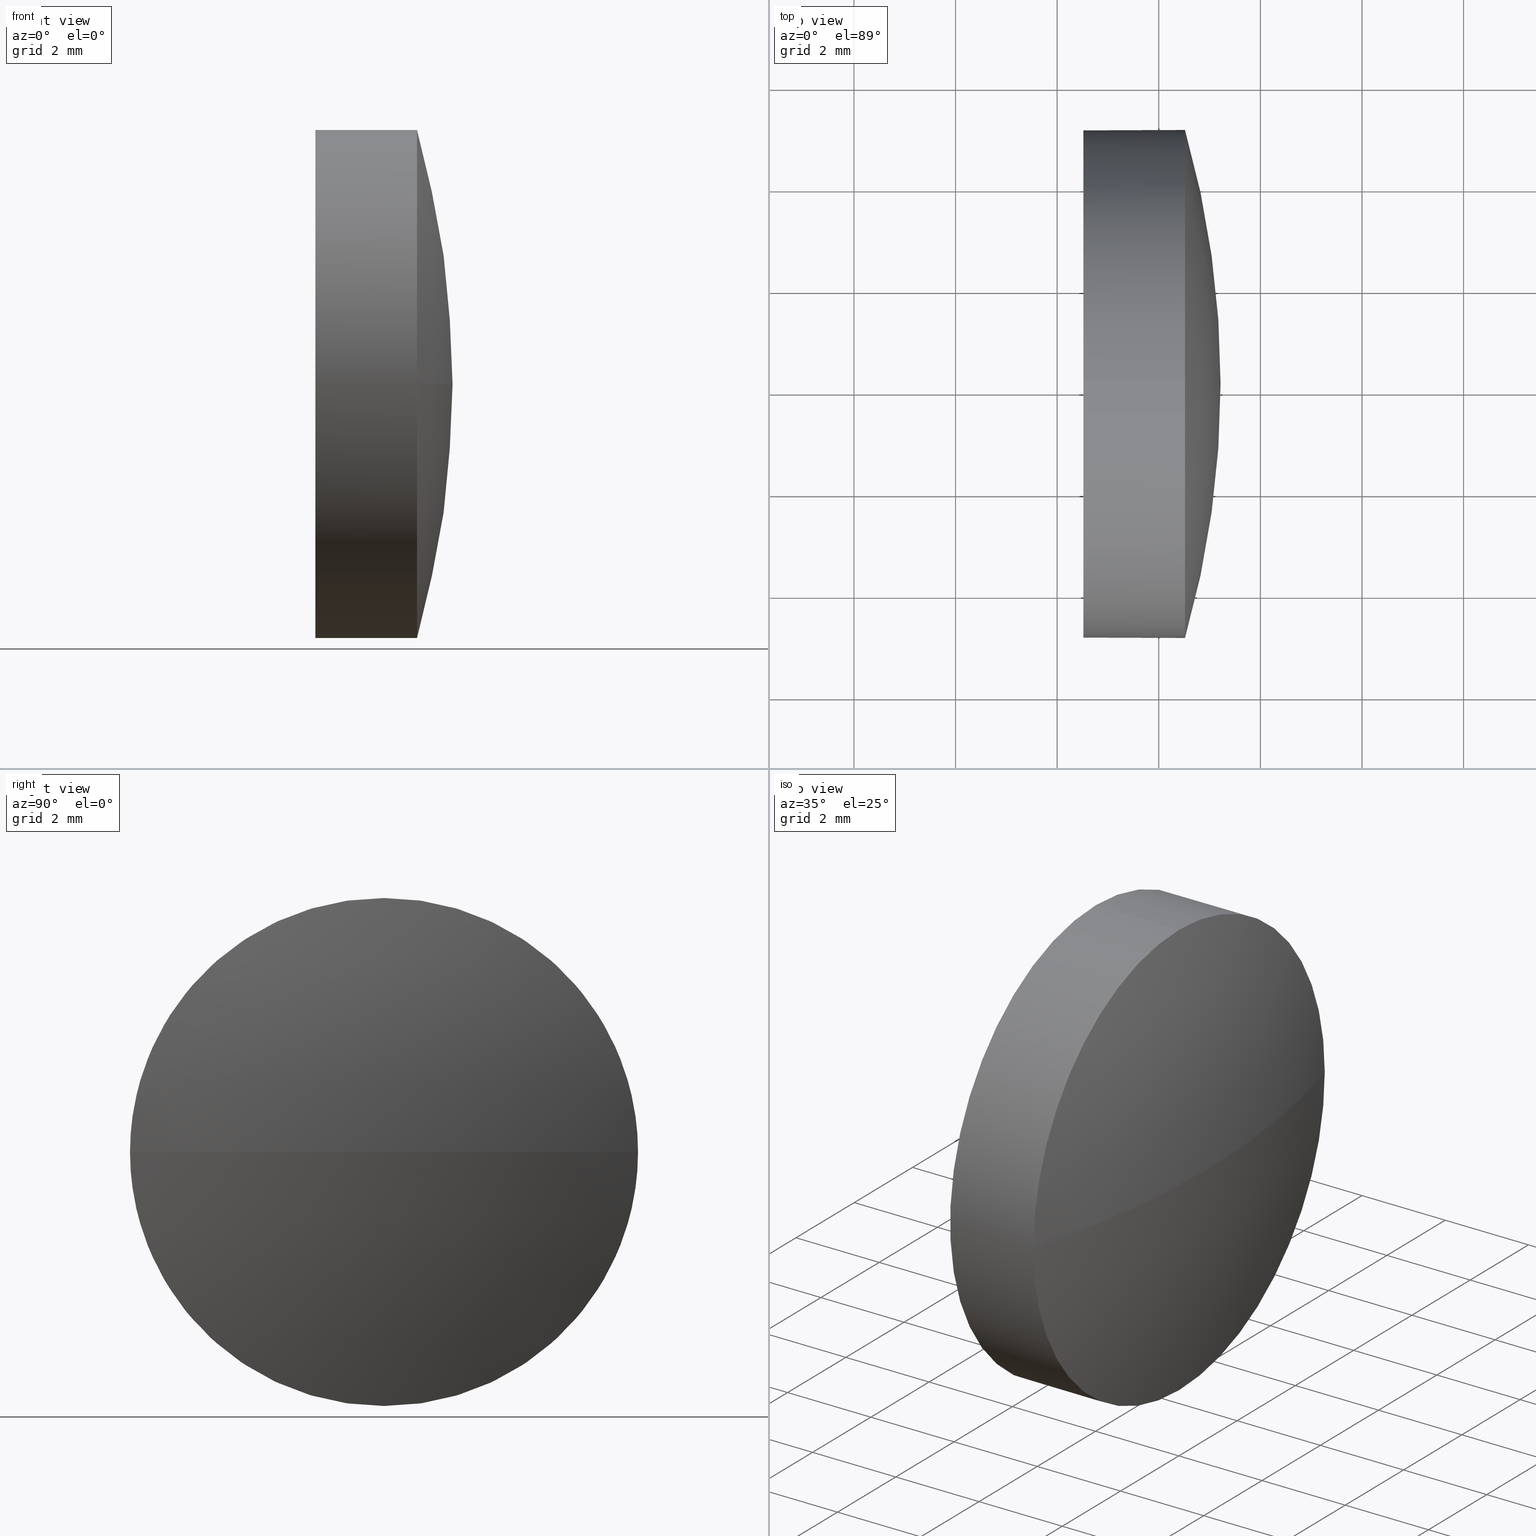
[diagram: canonical four-view strip — front | top / right | iso, engineering-drawing reading convention]
A machine part, canonical four-view strip (front | top / right | iso — engineering-drawing reading convention). The complete STEP part file that produces these views, byte-faithful:
ISO-10303-21;
HEADER;
FILE_DESCRIPTION (( 'STEP AP214' ),
    '1' );
FILE_NAME ('100361.STEP',
    '2019-06-04T01:58:50',
    ( '' ),
    ( '' ),
    'SwSTEP 2.0',
    'SolidWorks 2016',
    '' );
FILE_SCHEMA (( 'AUTOMOTIVE_DESIGN' ));
ENDSEC;

DATA;
#1 = VERTEX_POINT ( 'NONE', #108 ) ;
#2 = APPLICATION_PROTOCOL_DEFINITION ( 'draft international standard', 'automotive_design', 1998, #151 ) ;
#3 = AXIS2_PLACEMENT_3D ( 'NONE', #183, #86, #73 ) ;
#4 =( NAMED_UNIT ( * ) PLANE_ANGLE_UNIT ( ) SI_UNIT ( $, .RADIAN. ) );
#5 = FACE_OUTER_BOUND ( 'NONE', #94, .T. ) ;
#6 =( GEOMETRIC_REPRESENTATION_CONTEXT ( 3 ) GLOBAL_UNCERTAINTY_ASSIGNED_CONTEXT ( ( #91 ) ) GLOBAL_UNIT_ASSIGNED_CONTEXT ( ( #45, #4, #57 ) ) REPRESENTATION_CONTEXT ( 'NONE', 'WORKASPACE' ) );
#7 = ORIENTED_EDGE ( 'NONE', *, *, #55, .T. ) ;
#8 = COLOUR_RGB ( '',1.000000000000000000, 1.000000000000000000, 1.000000000000000000 ) ;
#9 = CARTESIAN_POINT ( 'NONE',  ( 434.5168142886836300, 90.12789377755979100, 0.0000000000000000000 ) ) ;
#10 = DIRECTION ( 'NONE',  ( 0.0000000000000000000, 0.0000000000000000000, 1.000000000000000000 ) ) ;
#11 = DIRECTION ( 'NONE',  ( -1.000000000000000000, -0.0000000000000000000, -0.0000000000000000000 ) ) ;
#12 = AXIS2_PLACEMENT_3D ( 'NONE', #81, #47, #72 ) ;
#13 = CARTESIAN_POINT ( 'NONE',  ( 432.5168142886836300, 90.12789377755979100, 5.000000000000004400 ) ) ;
#14 = UNCERTAINTY_MEASURE_WITH_UNIT (LENGTH_MEASURE( 1.000000000000000100E-005 ), #148, 'distance_accuracy_value', 'NONE');
#15 = CARTESIAN_POINT ( 'NONE',  ( 434.5168142886836300, 90.12789377755979100, 0.0000000000000000000 ) ) ;
#16 = EDGE_LOOP ( 'NONE', ( #141, #100, #175, #40, #54 ) ) ;
#17 = DIRECTION ( 'NONE',  ( -1.000000000000000000, -0.0000000000000000000, -0.0000000000000000000 ) ) ;
#18 = LINE ( 'NONE', #60, #120 ) ;
#19 = SURFACE_STYLE_FILL_AREA ( #117 ) ;
#20 = STYLED_ITEM ( 'NONE', ( #136 ), #35 ) ;
#21 = FACE_OUTER_BOUND ( 'NONE', #16, .T. ) ;
#22 = PRODUCT_RELATED_PRODUCT_CATEGORY ( 'part', '', ( #165 ) ) ;
#23 = VERTEX_POINT ( 'NONE', #109 ) ;
#24 = ORIENTED_EDGE ( 'NONE', *, *, #122, .T. ) ;
#25 = FILL_AREA_STYLE_COLOUR ( '', #130 ) ;
#26 = AXIS2_PLACEMENT_3D ( 'NONE', #169, #170, #181 ) ;
#27 = SURFACE_STYLE_USAGE ( .BOTH. , #160 ) ;
#28 = DIRECTION ( 'NONE',  ( -0.0000000000000000000, 0.0000000000000000000, -1.000000000000000000 ) ) ;
#29 = PRODUCT_DEFINITION_CONTEXT ( 'detailed design', #151, 'design' ) ;
#30 = VERTEX_POINT ( 'NONE', #180 ) ;
#31 = DIRECTION ( 'NONE',  ( 0.0000000000000000000, 0.0000000000000000000, 1.000000000000000000 ) ) ;
#32 = PRESENTATION_LAYER_ASSIGNMENT (  '', '', ( #20 ) ) ;
#33 = PLANE ( 'NONE',  #12 ) ;
#34 = CARTESIAN_POINT ( 'NONE',  ( 431.3745845962391700, 90.12789377755979100, 0.0000000000000000000 ) ) ;
#35 = ADVANCED_BREP_SHAPE_REPRESENTATION ( '100361', ( #110, #135 ), #115 ) ;
#36 = SURFACE_STYLE_USAGE ( .BOTH. , #112 ) ;
#37 = DIRECTION ( 'NONE',  ( -1.000000000000000000, -0.0000000000000000000, -0.0000000000000000000 ) ) ;
#38 = AXIS2_PLACEMENT_3D ( 'NONE', #176, #28, #39 ) ;
#39 = DIRECTION ( 'NONE',  ( 0.0000000000000000000, 1.000000000000000000, 0.0000000000000000000 ) ) ;
#40 = ORIENTED_EDGE ( 'NONE', *, *, #186, .T. ) ;
#41 = AXIS2_PLACEMENT_3D ( 'NONE', #34, #166, #126 ) ;
#42 = VERTEX_POINT ( 'NONE', #177 ) ;
#43 =( NAMED_UNIT ( * ) SI_UNIT ( $, .STERADIAN. ) SOLID_ANGLE_UNIT ( ) );
#44 = CIRCLE ( 'NONE', #155, 18.20714285714292300 ) ;
#45 =( LENGTH_UNIT ( ) NAMED_UNIT ( * ) SI_UNIT ( .MILLI., .METRE. ) );
#46 = ORIENTED_EDGE ( 'NONE', *, *, #186, .F. ) ;
#47 = DIRECTION ( 'NONE',  ( 1.000000000000000000, 0.0000000000000000000, 0.0000000000000000000 ) ) ;
#48 = EDGE_CURVE ( 'NONE', #1, #145, #158, .T. ) ;
#49 = DIRECTION ( 'NONE',  ( 1.000000000000000000, 0.0000000000000000000, 0.0000000000000000000 ) ) ;
#50 = DIRECTION ( 'NONE',  ( 0.0000000000000000000, 0.0000000000000000000, 1.000000000000000000 ) ) ;
#51 = ORIENTED_EDGE ( 'NONE', *, *, #62, .F. ) ;
#52 = MECHANICAL_DESIGN_GEOMETRIC_PRESENTATION_REPRESENTATION (  '', ( #20 ), #6 ) ;
#53 = ORIENTED_EDGE ( 'NONE', *, *, #168, .T. ) ;
#54 = ORIENTED_EDGE ( 'NONE', *, *, #132, .F. ) ;
#55 = EDGE_CURVE ( 'NONE', #145, #23, #18, .T. ) ;
#56 = CIRCLE ( 'NONE', #69, 5.000000000000004400 ) ;
#57 =( NAMED_UNIT ( * ) SI_UNIT ( $, .STERADIAN. ) SOLID_ANGLE_UNIT ( ) );
#58 = EDGE_CURVE ( 'NONE', #76, #30, #131, .T. ) ;
#59 = ORIENTED_EDGE ( 'NONE', *, *, #66, .F. ) ;
#60 = CARTESIAN_POINT ( 'NONE',  ( 431.3745845962391700, 90.12789377755979100, -5.000000000000004400 ) ) ;
#61 = PRODUCT_DEFINITION_SHAPE ( 'NONE', 'NONE',  #99 ) ;
#62 = EDGE_CURVE ( 'NONE', #42, #76, #77, .T. ) ;
#63 = SPHERICAL_SURFACE ( 'NONE', #3, 18.20714285714293700 ) ;
#64 = DIRECTION ( 'NONE',  ( 0.0000000000000000000, 0.0000000000000000000, 1.000000000000000000 ) ) ;
#65 = CIRCLE ( 'NONE', #163, 5.000000000000004400 ) ;
#66 = EDGE_CURVE ( 'NONE', #145, #76, #56, .T. ) ;
#67 = ORIENTED_EDGE ( 'NONE', *, *, #168, .F. ) ;
#68 = SURFACE_STYLE_FILL_AREA ( #142 ) ;
#69 = AXIS2_PLACEMENT_3D ( 'NONE', #123, #11, #10 ) ;
#70 = DIRECTION ( 'NONE',  ( -1.000000000000000000, -0.0000000000000000000, -0.0000000000000000000 ) ) ;
#71 = DIRECTION ( 'NONE',  ( 1.000000000000000000, 0.0000000000000000000, 0.0000000000000000000 ) ) ;
#72 = DIRECTION ( 'NONE',  ( 0.0000000000000000000, 0.0000000000000000000, -1.000000000000000000 ) ) ;
#73 = DIRECTION ( 'NONE',  ( 0.0000000000000000000, 1.000000000000000000, 0.0000000000000000000 ) ) ;
#74 = PRESENTATION_STYLE_ASSIGNMENT (( #36 ) ) ;
#75 = CARTESIAN_POINT ( 'NONE',  ( 432.5168142886836300, 90.12789377755979100, 0.0000000000000000000 ) ) ;
#76 = VERTEX_POINT ( 'NONE', #125 ) ;
#77 = CIRCLE ( 'NONE', #146, 18.20714285714293700 ) ;
#78 = DIRECTION ( 'NONE',  ( 0.0000000000000000000, 0.0000000000000000000, 1.000000000000000000 ) ) ;
#79 = ORIENTED_EDGE ( 'NONE', *, *, #102, .T. ) ;
#80 = AXIS2_PLACEMENT_3D ( 'NONE', #144, #37, #64 ) ;
#81 = CARTESIAN_POINT ( 'NONE',  ( 432.5168142886836300, 90.12789377755979100, 0.0000000000000000000 ) ) ;
#82 = STYLED_ITEM ( 'NONE', ( #74 ), #110 ) ;
#83 = DIRECTION ( 'NONE',  ( 0.0000000000000000000, 0.0000000000000000000, 1.000000000000000000 ) ) ;
#84 = FILL_AREA_STYLE_COLOUR ( '', #8 ) ;
#85 = ADVANCED_FACE ( 'NONE', ( #113 ), #33, .F. ) ;
#86 = DIRECTION ( 'NONE',  ( -0.0000000000000000000, 0.0000000000000000000, -1.000000000000000000 ) ) ;
#87 = ORIENTED_EDGE ( 'NONE', *, *, #48, .T. ) ;
#88 = CIRCLE ( 'NONE', #105, 5.000000000000004400 ) ;
#89 = ADVANCED_FACE ( 'NONE', ( #157 ), #164, .T. ) ;
#90 = APPLICATION_CONTEXT ( 'automotive_design' ) ;
#91 = UNCERTAINTY_MEASURE_WITH_UNIT (LENGTH_MEASURE( 1.000000000000000100E-005 ), #45, 'distance_accuracy_value', 'NONE');
#92 = FACE_OUTER_BOUND ( 'NONE', #152, .T. ) ;
#93 = DIRECTION ( 'NONE',  ( -1.000000000000000000, -0.0000000000000000000, -0.0000000000000000000 ) ) ;
#94 = EDGE_LOOP ( 'NONE', ( #51, #24, #116, #138 ) ) ;
#95 = SPHERICAL_SURFACE ( 'NONE', #38, 18.20714285714293700 ) ;
#96 =( NAMED_UNIT ( * ) PLANE_ANGLE_UNIT ( ) SI_UNIT ( $, .RADIAN. ) );
#97 = AXIS2_PLACEMENT_3D ( 'NONE', #9, #93, #121 ) ;
#98 = CARTESIAN_POINT ( 'NONE',  ( 434.5168142886836300, 90.12789377755979100, -5.000000000000004400 ) ) ;
#99 = PRODUCT_DEFINITION ( 'δ֪', '', #184, #29 ) ;
#100 = ORIENTED_EDGE ( 'NONE', *, *, #66, .T. ) ;
#101 = SHAPE_DEFINITION_REPRESENTATION ( #61, #35 ) ;
#102 = EDGE_CURVE ( 'NONE', #30, #1, #88, .T. ) ;
#103 = ADVANCED_FACE ( 'NONE', ( #5 ), #95, .T. ) ;
#104 = ORIENTED_EDGE ( 'NONE', *, *, #48, .F. ) ;
#105 = AXIS2_PLACEMENT_3D ( 'NONE', #15, #17, #50 ) ;
#106 = APPLICATION_PROTOCOL_DEFINITION ( 'draft international standard', 'automotive_design', 1998, #90 ) ;
#107 = DIRECTION ( 'NONE',  ( 0.0000000000000000000, 1.224646799147353200E-016, -1.000000000000000000 ) ) ;
#108 = CARTESIAN_POINT ( 'NONE',  ( 434.5168142886836300, 95.12789377755979100, 0.0000000000000000000 ) ) ;
#109 = CARTESIAN_POINT ( 'NONE',  ( 432.5168142886836300, 90.12789377755979100, -5.000000000000004400 ) ) ;
#110 = MANIFOLD_SOLID_BREP ( '��ת2', #118 ) ;
#111 = CARTESIAN_POINT ( 'NONE',  ( 0.0000000000000000000, 0.0000000000000000000, 0.0000000000000000000 ) ) ;
#112 = SURFACE_SIDE_STYLE ('',( #68 ) ) ;
#113 = FACE_OUTER_BOUND ( 'NONE', #133, .T. ) ;
#114 = CYLINDRICAL_SURFACE ( 'NONE', #80, 5.000000000000004400 ) ;
#115 =( GEOMETRIC_REPRESENTATION_CONTEXT ( 3 ) GLOBAL_UNCERTAINTY_ASSIGNED_CONTEXT ( ( #14 ) ) GLOBAL_UNIT_ASSIGNED_CONTEXT ( ( #148, #134, #43 ) ) REPRESENTATION_CONTEXT ( 'NONE', 'WORKASPACE' ) );
#116 = ORIENTED_EDGE ( 'NONE', *, *, #102, .F. ) ;
#117 = FILL_AREA_STYLE ('',( #25 ) ) ;
#118 = CLOSED_SHELL ( 'NONE', ( #89, #143, #103, #182, #85 ) ) ;
#119 = CARTESIAN_POINT ( 'NONE',  ( 431.3745845962391700, 90.12789377755979100, 5.000000000000004400 ) ) ;
#120 = VECTOR ( 'NONE', #154, 1000.000000000000000 ) ;
#121 = DIRECTION ( 'NONE',  ( 0.0000000000000000000, 0.0000000000000000000, 1.000000000000000000 ) ) ;
#122 = EDGE_CURVE ( 'NONE', #42, #1, #44, .T. ) ;
#123 = CARTESIAN_POINT ( 'NONE',  ( 434.5168142886836300, 90.12789377755979100, 0.0000000000000000000 ) ) ;
#124 = AXIS2_PLACEMENT_3D ( 'NONE', #139, #137, #31 ) ;
#125 = CARTESIAN_POINT ( 'NONE',  ( 434.5168142886836300, 85.12789377755979100, -6.123233995736751500E-016 ) ) ;
#126 = DIRECTION ( 'NONE',  ( 0.0000000000000000000, 0.0000000000000000000, 1.000000000000000000 ) ) ;
#127 = DIRECTION ( 'NONE',  ( -0.0000000000000000000, 0.0000000000000000000, 1.000000000000000000 ) ) ;
#128 =( NAMED_UNIT ( * ) SI_UNIT ( $, .STERADIAN. ) SOLID_ANGLE_UNIT ( ) );
#129 = CARTESIAN_POINT ( 'NONE',  ( 417.0096714315407100, 90.12789377755977700, 0.0000000000000000000 ) ) ;
#130 = COLOUR_RGB ( '',1.000000000000000000, 1.000000000000000000, 1.000000000000000000 ) ;
#131 = CIRCLE ( 'NONE', #97, 5.000000000000004400 ) ;
#132 = EDGE_CURVE ( 'NONE', #23, #174, #65, .T. ) ;
#133 = EDGE_LOOP ( 'NONE', ( #53, #159 ) ) ;
#134 =( NAMED_UNIT ( * ) PLANE_ANGLE_UNIT ( ) SI_UNIT ( $, .RADIAN. ) );
#135 = AXIS2_PLACEMENT_3D ( 'NONE', #111, #78, #71 ) ;
#136 = PRESENTATION_STYLE_ASSIGNMENT (( #27 ) ) ;
#137 = DIRECTION ( 'NONE',  ( -1.000000000000000000, -0.0000000000000000000, -0.0000000000000000000 ) ) ;
#138 = ORIENTED_EDGE ( 'NONE', *, *, #58, .F. ) ;
#139 = CARTESIAN_POINT ( 'NONE',  ( 434.5168142886836300, 90.12789377755979100, 0.0000000000000000000 ) ) ;
#140 =( LENGTH_UNIT ( ) NAMED_UNIT ( * ) SI_UNIT ( .MILLI., .METRE. ) );
#141 = ORIENTED_EDGE ( 'NONE', *, *, #55, .F. ) ;
#142 = FILL_AREA_STYLE ('',( #84 ) ) ;
#143 = ADVANCED_FACE ( 'NONE', ( #92 ), #63, .T. ) ;
#144 = CARTESIAN_POINT ( 'NONE',  ( 431.3745845962391700, 90.12789377755979100, 0.0000000000000000000 ) ) ;
#145 = VERTEX_POINT ( 'NONE', #98 ) ;
#146 = AXIS2_PLACEMENT_3D ( 'NONE', #167, #107, #153 ) ;
#147 = CIRCLE ( 'NONE', #26, 5.000000000000004400 ) ;
#148 =( LENGTH_UNIT ( ) NAMED_UNIT ( * ) SI_UNIT ( .MILLI., .METRE. ) );
#149 = ORIENTED_EDGE ( 'NONE', *, *, #62, .T. ) ;
#150 = PRODUCT_CONTEXT ( 'NONE', #90, 'mechanical' ) ;
#151 = APPLICATION_CONTEXT ( 'automotive_design' ) ;
#152 = EDGE_LOOP ( 'NONE', ( #178, #149, #59, #104 ) ) ;
#153 = DIRECTION ( 'NONE',  ( 0.0000000000000000000, 1.000000000000000000, 1.224646799147353000E-016 ) ) ;
#154 = DIRECTION ( 'NONE',  ( -1.000000000000000000, -0.0000000000000000000, -0.0000000000000000000 ) ) ;
#155 = AXIS2_PLACEMENT_3D ( 'NONE', #129, #127, #49 ) ;
#156 = VECTOR ( 'NONE', #70, 1000.000000000000000 ) ;
#157 = FACE_OUTER_BOUND ( 'NONE', #185, .T. ) ;
#158 = CIRCLE ( 'NONE', #124, 5.000000000000004400 ) ;
#159 = ORIENTED_EDGE ( 'NONE', *, *, #132, .T. ) ;
#160 = SURFACE_SIDE_STYLE ('',( #19 ) ) ;
#161 = PRESENTATION_LAYER_ASSIGNMENT (  '', '', ( #82 ) ) ;
#162 = LINE ( 'NONE', #119, #156 ) ;
#163 = AXIS2_PLACEMENT_3D ( 'NONE', #75, #171, #83 ) ;
#164 = CYLINDRICAL_SURFACE ( 'NONE', #41, 5.000000000000004400 ) ;
#165 = PRODUCT ( '100361', '100361', '', ( #150 ) ) ;
#166 = DIRECTION ( 'NONE',  ( -1.000000000000000000, -0.0000000000000000000, -0.0000000000000000000 ) ) ;
#167 = CARTESIAN_POINT ( 'NONE',  ( 417.0096714315407100, 90.12789377755977700, 0.0000000000000000000 ) ) ;
#168 = EDGE_CURVE ( 'NONE', #174, #23, #147, .T. ) ;
#169 = CARTESIAN_POINT ( 'NONE',  ( 432.5168142886836300, 90.12789377755979100, 0.0000000000000000000 ) ) ;
#170 = DIRECTION ( 'NONE',  ( -1.000000000000000000, -0.0000000000000000000, -0.0000000000000000000 ) ) ;
#171 = DIRECTION ( 'NONE',  ( -1.000000000000000000, -0.0000000000000000000, -0.0000000000000000000 ) ) ;
#172 = MECHANICAL_DESIGN_GEOMETRIC_PRESENTATION_REPRESENTATION (  '', ( #82 ), #179 ) ;
#173 = UNCERTAINTY_MEASURE_WITH_UNIT (LENGTH_MEASURE( 1.000000000000000100E-005 ), #140, 'distance_accuracy_value', 'NONE');
#174 = VERTEX_POINT ( 'NONE', #13 ) ;
#175 = ORIENTED_EDGE ( 'NONE', *, *, #58, .T. ) ;
#176 = CARTESIAN_POINT ( 'NONE',  ( 417.0096714315407100, 90.12789377755977700, 0.0000000000000000000 ) ) ;
#177 = CARTESIAN_POINT ( 'NONE',  ( 435.2168142886836200, 90.12789377755977700, 0.0000000000000000000 ) ) ;
#178 = ORIENTED_EDGE ( 'NONE', *, *, #122, .F. ) ;
#179 =( GEOMETRIC_REPRESENTATION_CONTEXT ( 3 ) GLOBAL_UNCERTAINTY_ASSIGNED_CONTEXT ( ( #173 ) ) GLOBAL_UNIT_ASSIGNED_CONTEXT ( ( #140, #96, #128 ) ) REPRESENTATION_CONTEXT ( 'NONE', 'WORKASPACE' ) );
#180 = CARTESIAN_POINT ( 'NONE',  ( 434.5168142886836300, 90.12789377755979100, 5.000000000000004400 ) ) ;
#181 = DIRECTION ( 'NONE',  ( 0.0000000000000000000, 0.0000000000000000000, 1.000000000000000000 ) ) ;
#182 = ADVANCED_FACE ( 'NONE', ( #21 ), #114, .T. ) ;
#183 = CARTESIAN_POINT ( 'NONE',  ( 417.0096714315407100, 90.12789377755977700, 0.0000000000000000000 ) ) ;
#184 = PRODUCT_DEFINITION_FORMATION_WITH_SPECIFIED_SOURCE ( '�κ�', '', #165, .NOT_KNOWN. ) ;
#185 = EDGE_LOOP ( 'NONE', ( #87, #7, #67, #46, #79 ) ) ;
#186 = EDGE_CURVE ( 'NONE', #30, #174, #162, .T. ) ;
ENDSEC;
END-ISO-10303-21;
